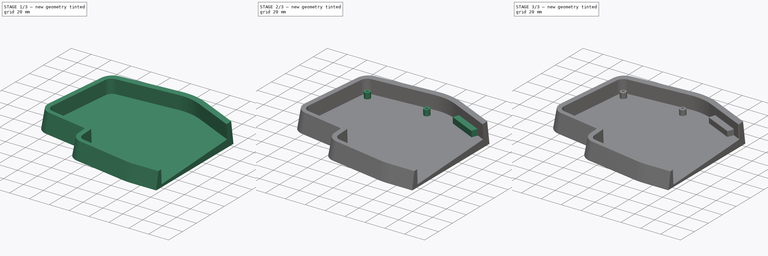
[diagram: build sequence overview — one tinted view per stage of 3, left to right]
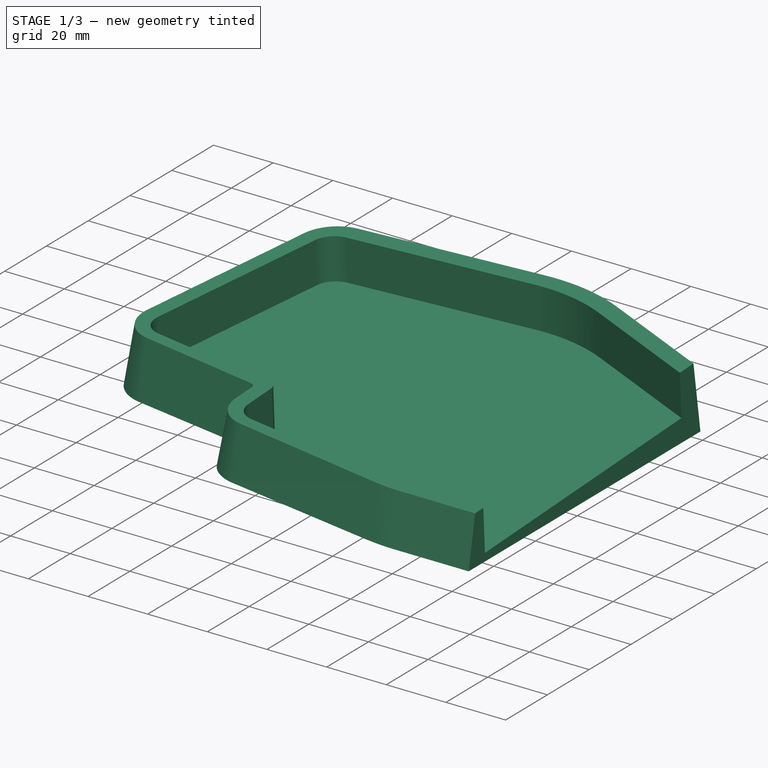
[diagram: stage 1 of 3 — iso view after this stage's code; geometry added in this stage tinted green]
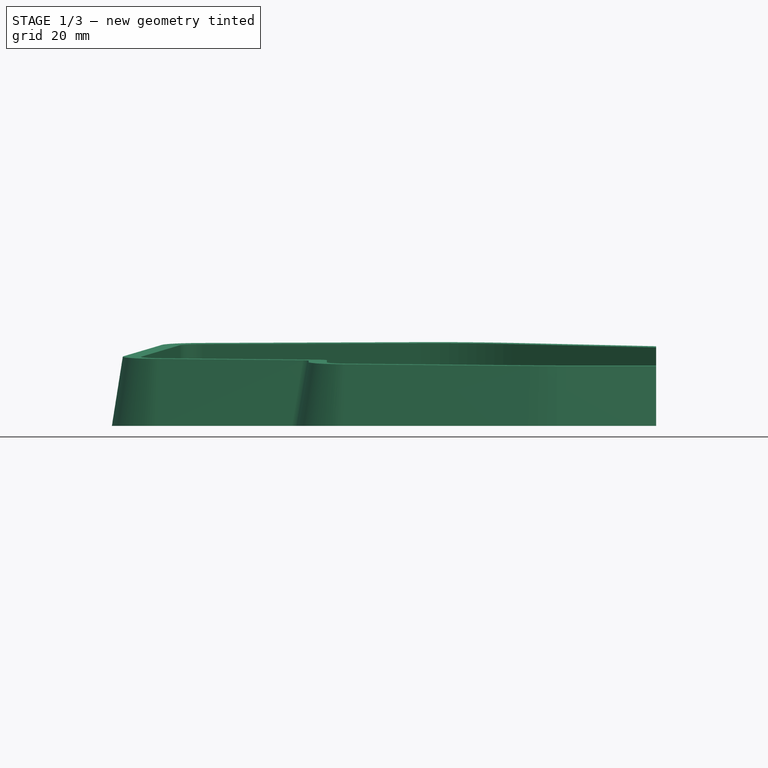
[diagram: stage 1 of 3 — front view after this stage's code; geometry added in this stage tinted green]
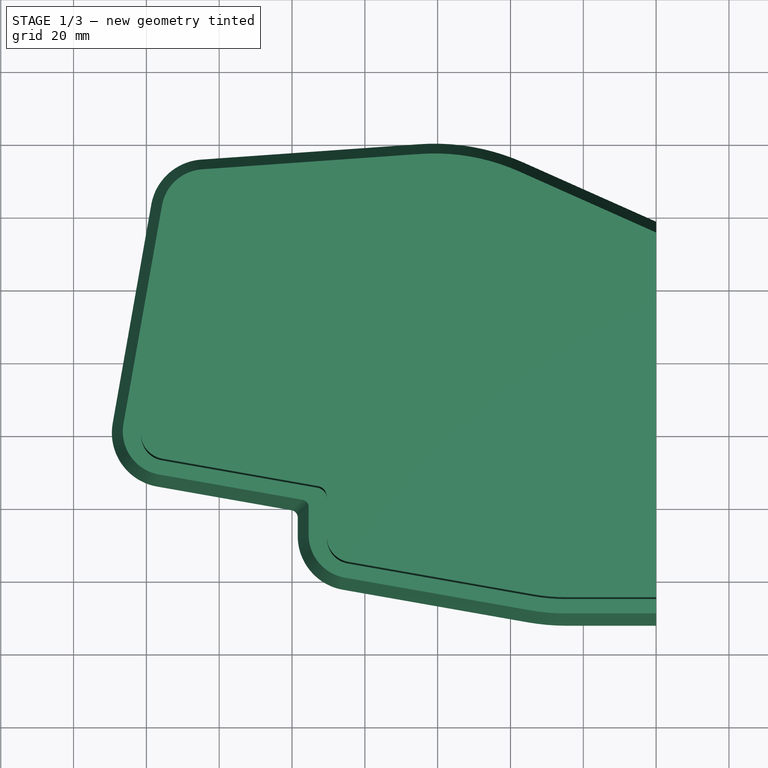
[diagram: stage 1 of 3 — top view after this stage's code; geometry added in this stage tinted green]
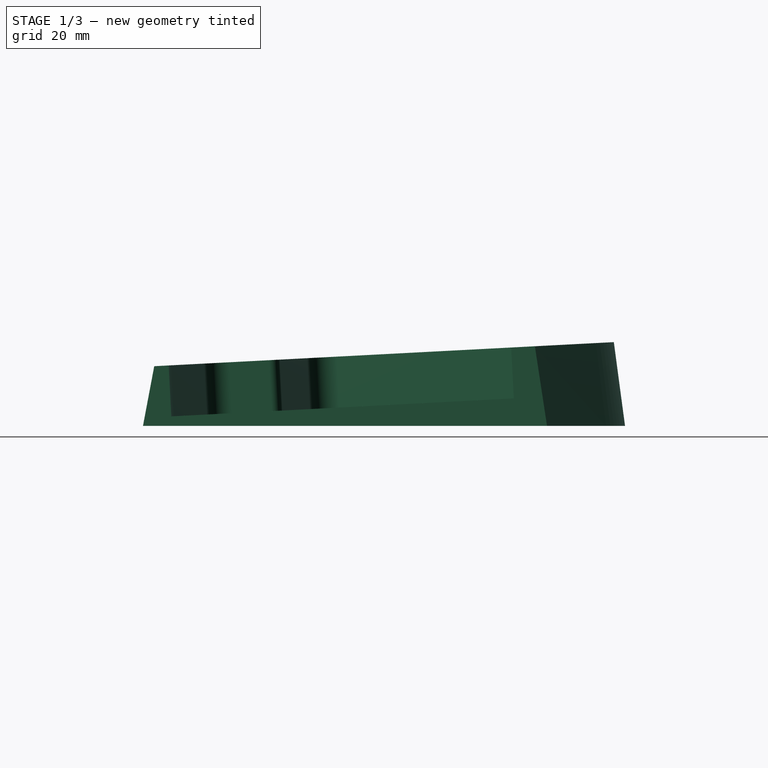
[diagram: stage 1 of 3 — right view after this stage's code; geometry added in this stage tinted green]
FCSTD DOCUMENT  (FreeCAD 0.20R)
Label: case2.1
License: All rights reserved
LicenseURL: http://en.wikipedia.org/wiki/All_rights_reserved
objects: Sketcher::SketchObject×5, PartDesign::AdditiveLoft×1, PartDesign::Pocket×1, PartDesign::Pad×1, PartDesign::Hole×1, PartDesign::Fillet×1, PartDesign::Chamfer×1, PartDesign::Body×1
note: 18 computed .brp shape members not serialized (recipe doc carries the construction recipe); baked Part::Feature solids carry a one-line shape summary decoded from their .brp

FEATURE [Sketcher::SketchObject] Sketch
  FullyConstrained = false
  sketch-geometry (14):
    g0: ArcOfCircle CenterX=-123.886 CenterY=41.0758 CenterZ=0 NormalX=0 NormalY=0 NormalZ=1 AngleXU=0 Radius=15 StartAngle=1.64124 EndAngle=2.96706
    g1: LineSegment StartX=-138.658 StartY=43.6805 StartZ=0 EndX=-149.251 EndY=-16.3966 EndZ=0
    g2: ArcOfCircle CenterX=-134.479 CenterY=-19.0013 CenterZ=0 NormalX=0 NormalY=0 NormalZ=1 AngleXU=0 Radius=15 StartAngle=2.96706 EndAngle=4.53786
    g3: ArcOfCircle CenterX=-83.4375 CenterY=-47.3453 CenterZ=0 NormalX=0 NormalY=0 NormalZ=1 AngleXU=0 Radius=15 StartAngle=3.14159 EndAngle=4.53786
    g4: LineSegment StartX=-86.0422 StartY=-62.1174 StartZ=0 EndX=-35.1646 EndY=-71.0885 EndZ=0
    g5: ArcOfCircle CenterX=-24.7458 CenterY=-12 CenterZ=0 NormalX=0 NormalY=0 NormalZ=1 AngleXU=0 Radius=60 StartAngle=4.53786 EndAngle=4.71239
    g6: ArcOfCircle CenterX=-60.8394 CenterY=0.412619 CenterZ=0 NormalX=0 NormalY=0 NormalZ=1 AngleXU=0 Radius=60 StartAngle=1.15128 EndAngle=1.64124
    g7: LineSegment StartX=-124.942 StartY=56.0386 StartZ=0 EndX=-65.0627 EndY=60.2638 EndZ=0
    g8: LineSegment StartX=-137.084 StartY=-33.7734 StartZ=0 EndX=-100.09 EndY=-40.2965 EndZ=0
    g9: LineSegment StartX=-98.4375 StartY=-42.2661 StartZ=0 EndX=-98.4375 EndY=-47.3453 EndZ=0
    g10: ArcOfCircle CenterX=-100.438 CenterY=-42.2661 CenterZ=0 NormalX=0 NormalY=0 NormalZ=1 AngleXU=0 Radius=2 StartAngle=0 EndAngle=1.39626
    g11: LineSegment StartX=-24.7458 StartY=-72 StartZ=0 EndX=0 EndY=-72 EndZ=0
    g12: LineSegment StartX=-36.4006 StartY=55.2099 StartZ=0 EndX=0 EndY=38.9757 EndZ=0
    g13: LineSegment StartX=0 StartY=38.9757 StartZ=0 EndX=0 EndY=-72 EndZ=0
  constraints (14):
    c: Coincident(g1,g2)
    c: Coincident(g0,g1)
    c: Coincident(g2,g8)
    c: Coincident(g0,g7)
    c: Coincident(g8,g10)
    c: Coincident(g3,g9)
    c: Coincident(g9,g10)
    c: Coincident(g3,g4)
    c: Coincident(g6,g7)
    c: Coincident(g6,g12)
    c: Coincident(g4,g5)
    c: Coincident(g5,g11)
    c: Coincident(g11,g13)
    c: Coincident(g12,g13)
FEATURE [Sketcher::SketchObject] Sketch001
  FullyConstrained = false
  Placement = pos=(0,0,20) rot=(1,0,0;0.05236rad)
  sketch-geometry (14):
    g0: ArcOfCircle CenterX=-24.7458 CenterY=-12 CenterZ=0 NormalX=0 NormalY=0 NormalZ=1 AngleXU=0 Radius=57 StartAngle=4.53786 EndAngle=4.71239
    g1: LineSegment StartX=-85.5213 StartY=-59.163 StartZ=0 EndX=-34.6437 EndY=-68.134 EndZ=0
    g2: ArcOfCircle CenterX=-83.4375 CenterY=-47.3453 CenterZ=0 NormalX=0 NormalY=0 NormalZ=1 AngleXU=0 Radius=12 StartAngle=3.14159 EndAngle=4.53786
    g3: ArcOfCircle CenterX=-134.479 CenterY=-19.0013 CenterZ=0 NormalX=0 NormalY=0 NormalZ=1 AngleXU=0 Radius=12 StartAngle=2.96706 EndAngle=4.53786
    g4: LineSegment StartX=-135.704 StartY=43.1596 StartZ=0 EndX=-146.297 EndY=-16.9175 EndZ=0
    g5: ArcOfCircle CenterX=-123.886 CenterY=41.0758 CenterZ=0 NormalX=0 NormalY=0 NormalZ=1 AngleXU=0 Radius=12 StartAngle=1.64124 EndAngle=2.96706
    g6: LineSegment StartX=-124.731 StartY=53.046 StartZ=0 EndX=-64.8515 EndY=57.2712 EndZ=0
    g7: ArcOfCircle CenterX=-60.8394 CenterY=0.412619 CenterZ=0 NormalX=0 NormalY=0 NormalZ=1 AngleXU=0 Radius=57 StartAngle=1.15128 EndAngle=1.64124
    g8: LineSegment StartX=-136.563 StartY=-30.819 StartZ=0 EndX=-97.0902 EndY=-37.7792 EndZ=0
    g9: LineSegment StartX=-95.4375 StartY=-39.7488 StartZ=0 EndX=-95.4375 EndY=-47.3453 EndZ=0
    g10: ArcOfCircle CenterX=-97.4375 CenterY=-39.7488 CenterZ=0 NormalX=0 NormalY=0 NormalZ=1 AngleXU=0 Radius=2 StartAngle=0 EndAngle=1.39626
    g11: LineSegment StartX=-24.7458 StartY=-69 StartZ=0 EndX=0 EndY=-69 EndZ=0
    g12: LineSegment StartX=-37.6225 StartY=52.47 StartZ=0 EndX=0 EndY=35.6909 EndZ=0
    g13: LineSegment StartX=0 StartY=35.6909 StartZ=0 EndX=0 EndY=-69 EndZ=0
  constraints (14):
    c: Coincident(g3,g4)
    c: Coincident(g3,g8)
    c: Coincident(g4,g5)
    c: Coincident(g5,g6)
    c: Coincident(g8,g10)
    c: Coincident(g2,g9)
    c: Coincident(g9,g10)
    c: Coincident(g1,g2)
    c: Coincident(g6,g7)
    c: Coincident(g7,g12)
    c: Coincident(g0,g1)
    c: Coincident(g0,g11)
    c: Coincident(g11,g13)
    c: Coincident(g12,g13)
FEATURE [PartDesign::AdditiveLoft] AdditiveLoft
  Closed = false
  Profile = -> Sketch
  Ruled = false
  Sections = -> [Sketch001]
FEATURE [Sketcher::SketchObject] Sketch002
  FullyConstrained = false
  MapMode = 5
  Placement = pos=(2e-16,-1.04528,19.9452) rot=(1,0,0;0.05236rad)
  Support = -> [AdditiveLoft]
  sketch-geometry (14):
    g0: ArcOfCircle CenterX=-60.8394 CenterY=0.412619 CenterZ=0 NormalX=0 NormalY=0 NormalZ=1 AngleXU=0 Radius=52 StartAngle=1.15128 EndAngle=1.64124
    g1: LineSegment StartX=-124.379 StartY=48.0584 StartZ=0 EndX=-64.4996 EndY=52.2836 EndZ=0
    g2: ArcOfCircle CenterX=-123.886 CenterY=41.0758 CenterZ=0 NormalX=0 NormalY=0 NormalZ=1 AngleXU=0 Radius=7 StartAngle=1.64124 EndAngle=2.96706
    g3: LineSegment StartX=-130.78 StartY=42.2913 StartZ=0 EndX=-141.373 EndY=-17.7858 EndZ=0
    g4: ArcOfCircle CenterX=-134.479 CenterY=-19.0013 CenterZ=0 NormalX=0 NormalY=0 NormalZ=1 AngleXU=0 Radius=7 StartAngle=2.96706 EndAngle=4.53786
    g5: LineSegment StartX=-135.695 StartY=-25.895 StartZ=0 EndX=-92.9166 EndY=-33.438 EndZ=0
    g6: ArcOfCircle CenterX=-93.4375 CenterY=-36.3924 CenterZ=0 NormalX=0 NormalY=0 NormalZ=1 AngleXU=0 Radius=3 StartAngle=0 EndAngle=1.39626
    g7: LineSegment StartX=-90.4375 StartY=-36.3924 StartZ=0 EndX=-90.4375 EndY=-47.3453 EndZ=0
    g8: ArcOfCircle CenterX=-83.4375 CenterY=-47.3453 CenterZ=0 NormalX=0 NormalY=0 NormalZ=1 AngleXU=0 Radius=7 StartAngle=3.14159 EndAngle=4.53786
    g9: LineSegment StartX=-84.653 StartY=-54.2389 StartZ=0 EndX=-33.7755 EndY=-63.21 EndZ=0
    g10: ArcOfCircle CenterX=-24.7458 CenterY=-12 CenterZ=0 NormalX=0 NormalY=0 NormalZ=1 AngleXU=0 Radius=52 StartAngle=4.53786 EndAngle=4.71239
    g11: LineSegment StartX=-39.6591 StartY=47.9036 StartZ=0 EndX=0 EndY=30.2162 EndZ=0
    g12: LineSegment StartX=-24.7458 StartY=-64 StartZ=0 EndX=0 EndY=-64 EndZ=0
    g13: LineSegment StartX=0 StartY=30.2162 StartZ=0 EndX=0 EndY=-64 EndZ=0
  constraints (14):
    c: Coincident(g3,g4)
    c: Coincident(g4,g5)
    c: Coincident(g2,g3)
    c: Coincident(g1,g2)
    c: Coincident(g5,g6)
    c: Coincident(g7,g8)
    c: Coincident(g6,g7)
    c: Coincident(g8,g9)
    c: Coincident(g0,g1)
    c: Coincident(g0,g11)
    c: Coincident(g9,g10)
    c: Coincident(g10,g12)
    c: Coincident(g12,g13)
    c: Coincident(g11,g13)
FEATURE [PartDesign::Pocket] Pocket
  BaseFeature = -> AdditiveLoft
  Direction = (0,0.052336,-0.99863)
  Length = 14
  Length2 = 5
  Profile = -> Sketch002
  ReferenceAxis = -> Sketch002 [N_Axis]
  Type = 0
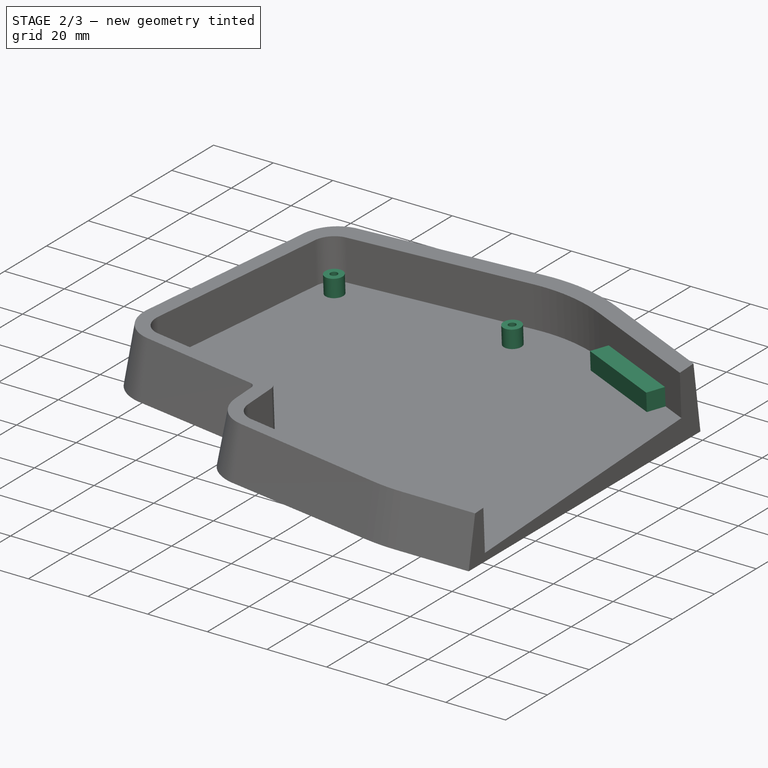
[diagram: stage 2 of 3 — iso view after this stage's code; geometry added in this stage tinted green]
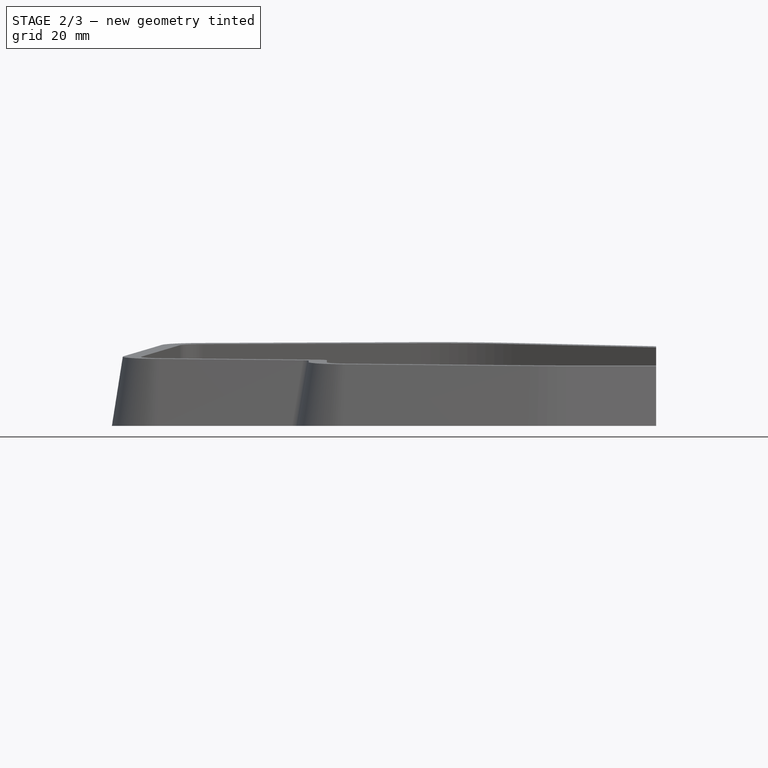
[diagram: stage 2 of 3 — front view after this stage's code; geometry added in this stage tinted green]
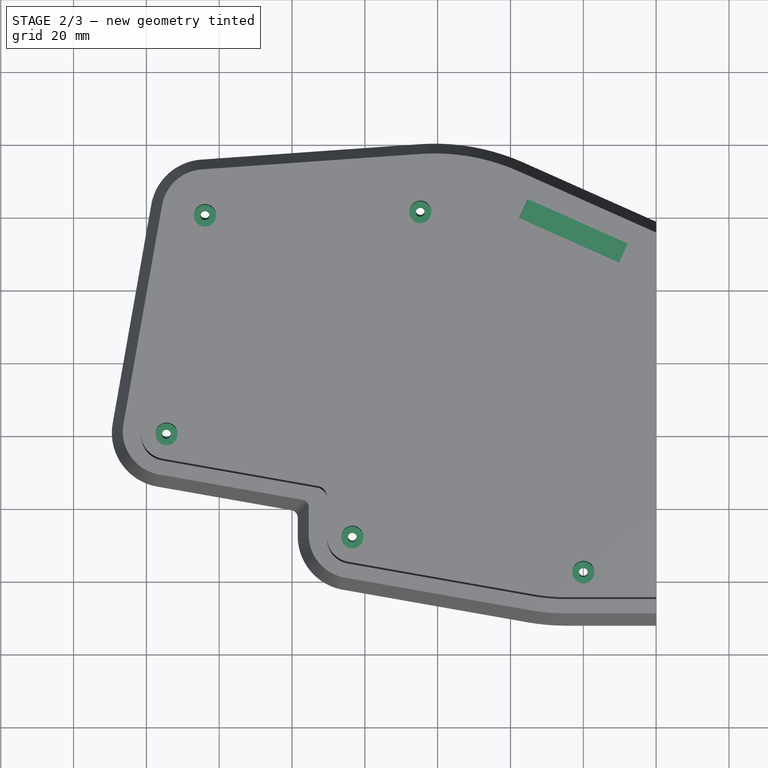
[diagram: stage 2 of 3 — top view after this stage's code; geometry added in this stage tinted green]
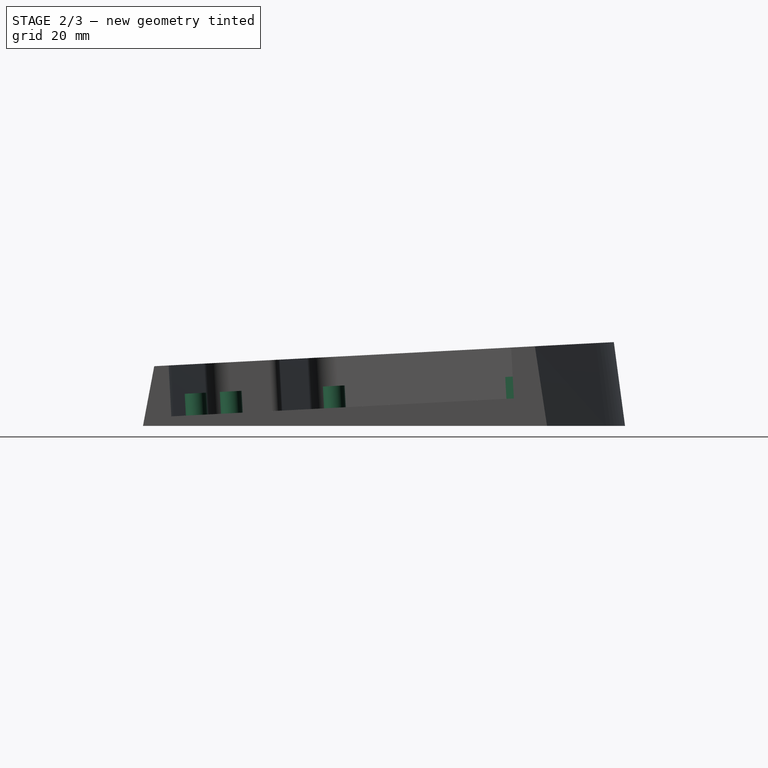
[diagram: stage 2 of 3 — right view after this stage's code; geometry added in this stage tinted green]
FEATURE [Sketcher::SketchObject] Sketch003
  ExternalGeometry = -> [Pocket]
  FullyConstrained = false
  MapMode = 5
  Placement = pos=(1e-16,-0.312581,5.96441) rot=(1,0,0;0.05236rad)
  Support = -> [Pocket]
  sketch-geometry (9):
    g0: Circle CenterX=-123.886 CenterY=41.0758 CenterZ=0 NormalX=0 NormalY=0 NormalZ=-1 AngleXU=0 Radius=3
    g1: Circle CenterX=-64.77 CenterY=41.995 CenterZ=0 NormalX=0 NormalY=0 NormalZ=-1 AngleXU=0 Radius=3
    g2: Circle CenterX=-134.479 CenterY=-19.0013 CenterZ=0 NormalX=0 NormalY=0 NormalZ=-1 AngleXU=0 Radius=3
    g3: Circle CenterX=-20 CenterY=-57 CenterZ=0 NormalX=0 NormalY=0 NormalZ=-1 AngleXU=0 Radius=3
    g4: Circle CenterX=-83.4375 CenterY=-47.3453 CenterZ=0 NormalX=0 NormalY=0 NormalZ=-1 AngleXU=0 Radius=3
    g5: LineSegment StartX=-35.0926 StartY=45.867 StartZ=0 EndX=-37.5365 EndY=40.3873 EndZ=0
    g6: LineSegment StartX=-37.5365 StartY=40.3873 StartZ=0 EndX=-10.1379 EndY=28.1679 EndZ=0
    g7: LineSegment StartX=-10.1379 StartY=28.1679 StartZ=0 EndX=-7.69399 EndY=33.6476 EndZ=0
    g8: LineSegment StartX=-7.69399 StartY=33.6476 StartZ=0 EndX=-35.0926 EndY=45.867 EndZ=0
  constraints (17):
    c: Coincident(g5,g6)
    c: Coincident(g6,g7)
    c: Coincident(g7,g8)
    c: Coincident(g8,g5)
    c: PointOnObject(g5,g-3)
    c: Perpendicular(g8,g5)
    c: PointOnObject(g7,g-3)
    c: Perpendicular(g6,g7)
    c: Perpendicular(g5,g6)
    c: Distance(g6) = 30
    c: Distance(g5) = 6
    c: Distance(g5,g-3) = 5
    c: Equal(g1,g0)
    c: Equal(g0,g2)
    c: Equal(g2,g3)
    c: Equal(g3,g4)
    c: Diameter(g0) = 6
FEATURE [PartDesign::Pad] Pad
  BaseFeature = -> Pocket
  Direction = (0,-0.052336,0.99863)
  Length = 6
  Length2 = 10
  Profile = -> Sketch003
  ReferenceAxis = -> Sketch003 [N_Axis]
  Type = 0
FEATURE [Sketcher::SketchObject] Sketch004
  ExternalGeometry = -> [Pad]
  FullyConstrained = false
  MapMode = 5
  Placement = pos=(1e-16,-0.626597,11.9562) rot=(1,0,0;0.05236rad)
  Support = -> [Pad]
  sketch-geometry (5):
    g0: Circle CenterX=-83.4375 CenterY=-47.3453 CenterZ=0 NormalX=0 NormalY=0 NormalZ=1 AngleXU=0 Radius=1.1
    g1: Circle CenterX=-123.886 CenterY=41.0758 CenterZ=0 NormalX=0 NormalY=0 NormalZ=1 AngleXU=0 Radius=1.1
    g2: Circle CenterX=-20 CenterY=-57 CenterZ=0 NormalX=0 NormalY=0 NormalZ=1 AngleXU=0 Radius=1.1
    g3: Circle CenterX=-134.479 CenterY=-19.0013 CenterZ=0 NormalX=0 NormalY=0 NormalZ=1 AngleXU=0 Radius=1.1
    g4: Circle CenterX=-64.77 CenterY=41.995 CenterZ=0 NormalX=0 NormalY=0 NormalZ=1 AngleXU=0 Radius=1.1
  constraints (7):
    c: Equal(g1,g2)
    c: Coincident(g3,g-4)
    c: Coincident(g4,g-3)
    c: Equal(g4,g1)
    c: Equal(g1,g3)
    c: Equal(g3,g0)
    c: Diameter(g0) = 2.2
FEATURE [PartDesign::Hole] Hole
  BaseFeature = -> Pad
  CustomThreadClearance = 0
  Depth = 25
  DepthType = 0
  Diameter = 2.42
  DrillForDepth = false
  DrillPoint = 1
  DrillPointAngle = 118
  HoleCutCountersinkAngle = 90
  HoleCutCustomValues = false
  HoleCutDepth = 0
  HoleCutDiameter = 6.1
  HoleCutType = 0
  ModelThread = false
  Profile = -> Sketch004
  Tapered = false
  TaperedAngle = 90
  ThreadClass = 0
  ThreadDepth = 25
  ThreadDepthType = 0
  ThreadDirection = 0
  ThreadFit = 0
  ThreadSize = 7
  ThreadType = 1
  Threaded = false
  UseCustomThreadClearance = false
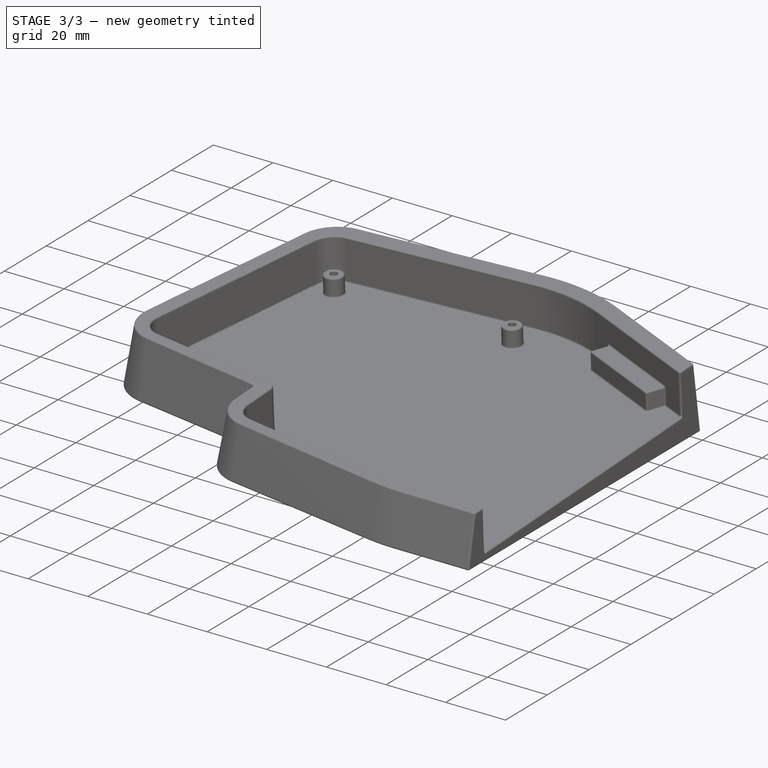
[diagram: stage 3 of 3 — iso view after this stage's code; geometry added in this stage tinted green]
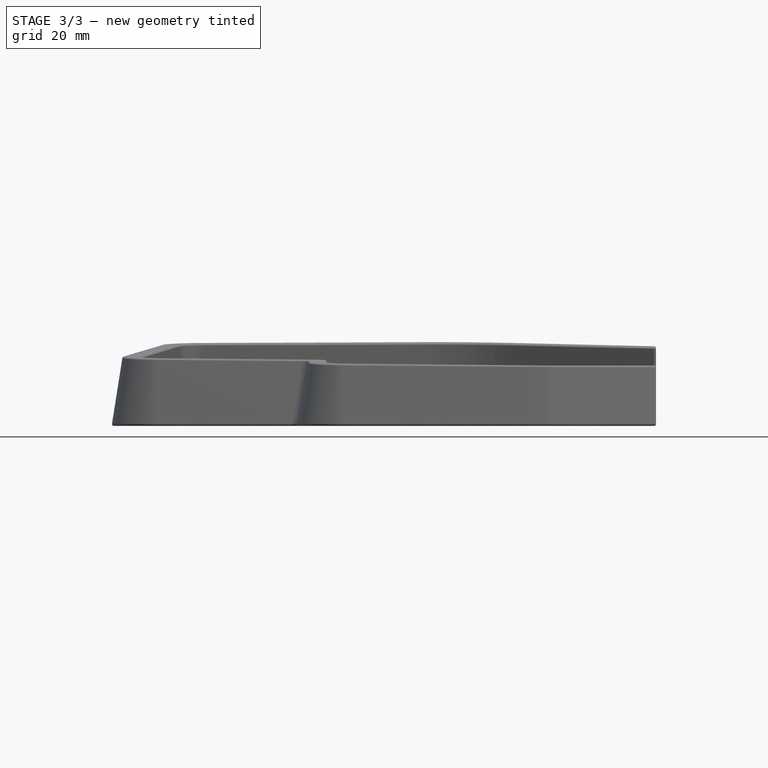
[diagram: stage 3 of 3 — front view after this stage's code; geometry added in this stage tinted green]
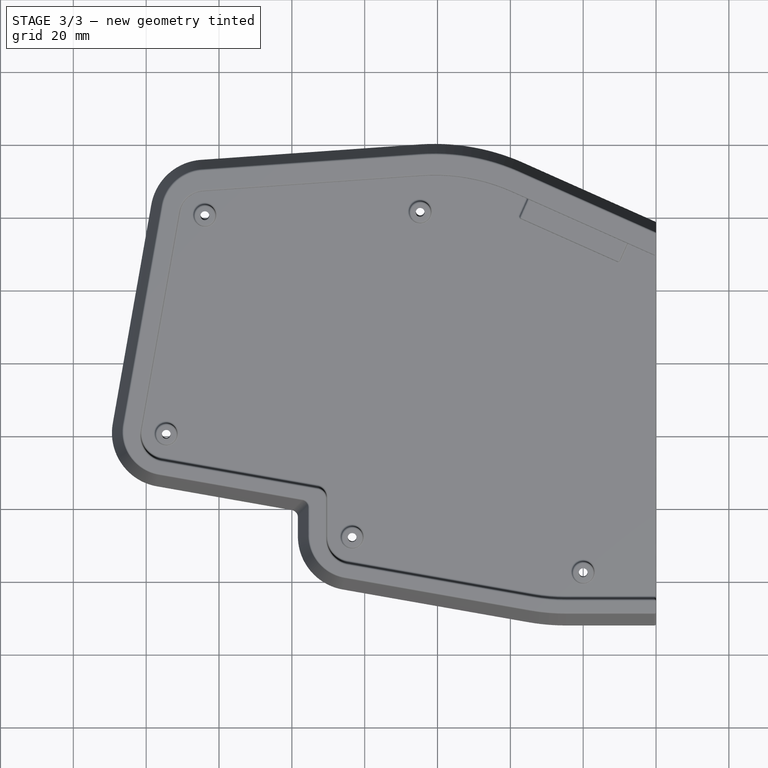
[diagram: stage 3 of 3 — top view after this stage's code; geometry added in this stage tinted green]
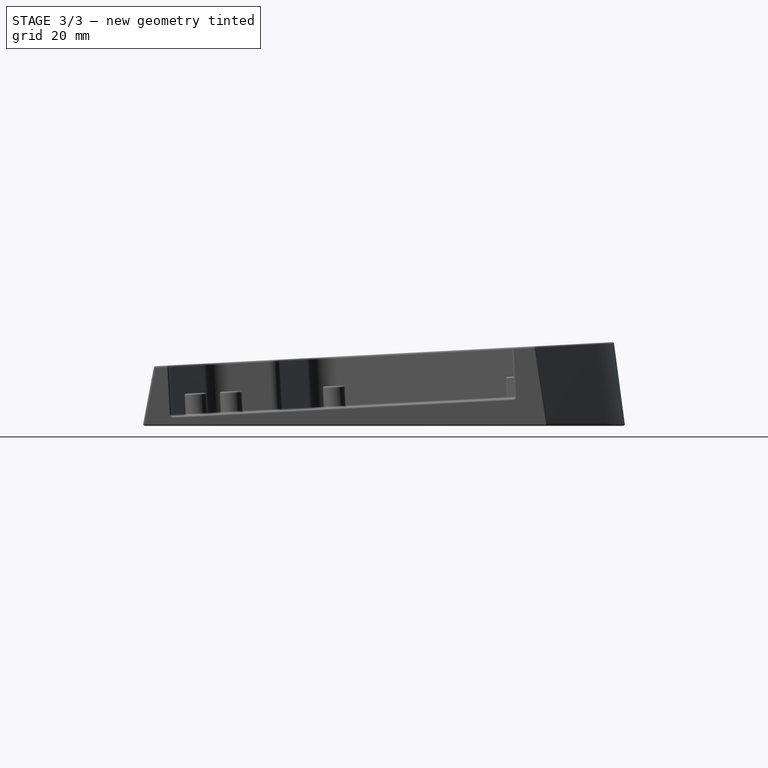
[diagram: stage 3 of 3 — right view after this stage's code; geometry added in this stage tinted green]
FEATURE [PartDesign::Fillet] Fillet
  Base = -> Hole [Edge1,Edge2,Edge3,Edge4,Edge5,Edge6,Edge7,Edge8,Edge9,Edge10,Edge11,Edge12,Edge13,Edge14,Edge20,Edge21,Edge22,Edge23,Edge24,Edge25,Edge26,Edge27,Edge28,Edge29,Edge30,Edge31,Edge32,Edge33,Edge34,Edge35,Edge36,Edge37,Edge38,Edge39,Edge40,Edge41,Edge42,Edge43,Edge44,Edge45,+76 more]
  BaseFeature = -> Hole
  Radius = 0.5
  SupportTransform = false
  UseAllEdges = false
FEATURE [PartDesign::Chamfer] Chamfer
  Angle = 45
  Base = -> Fillet [Face1]
  BaseFeature = -> Fillet
  ChamferType = 0
  FlipDirection = false
  Size = 3
  Size2 = 1
  SupportTransform = false
  UseAllEdges = false
FEATURE [PartDesign::Body] Body
  Group = -> [Sketch,Sketch001,Sketch002,AdditiveLoft,Pocket,Sketch003,Pad,Sketch004,Hole,Fillet,Chamfer]
  Origin = -> Origin
  Tip = -> Chamfer
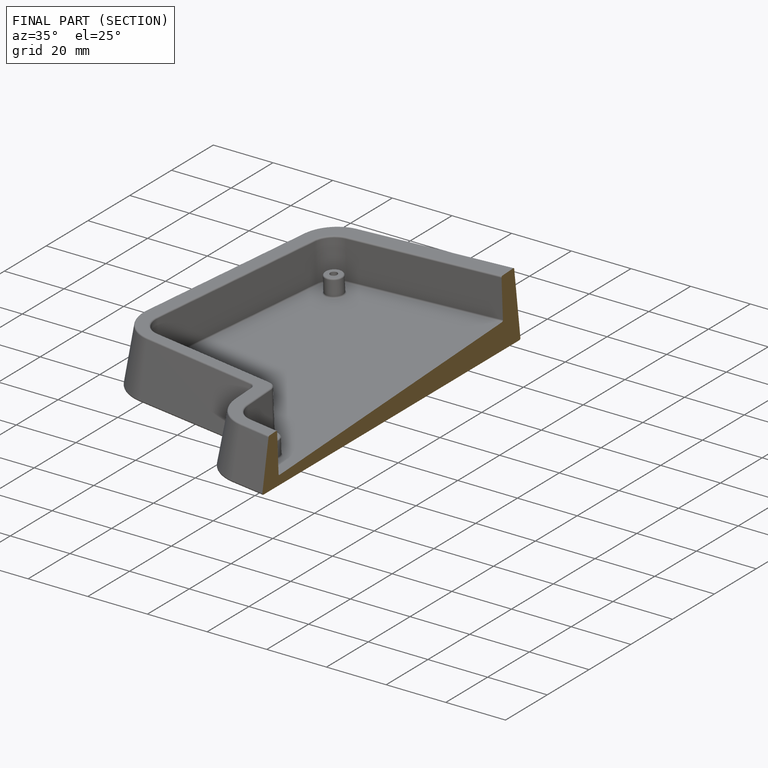
[diagram: finished part — half-section view (interior)]
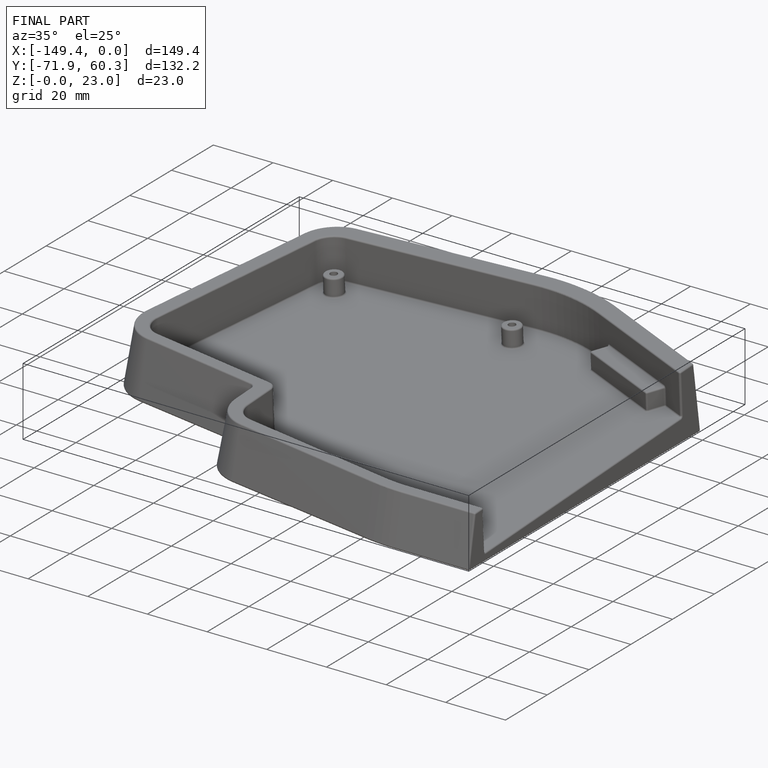
[diagram: finished part — iso view with bounding-box wireframe]
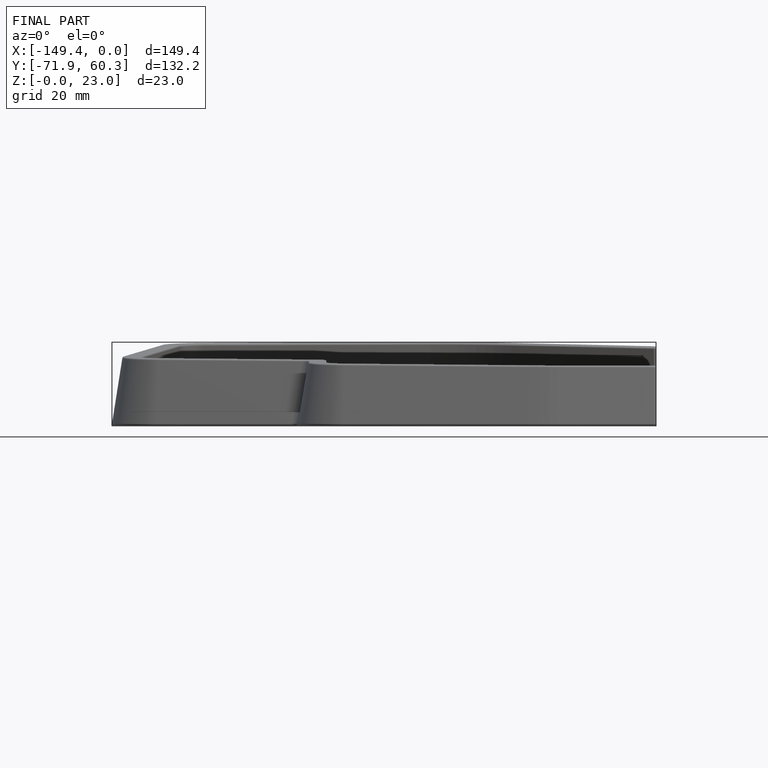
[diagram: finished part — front view with bounding-box wireframe]
